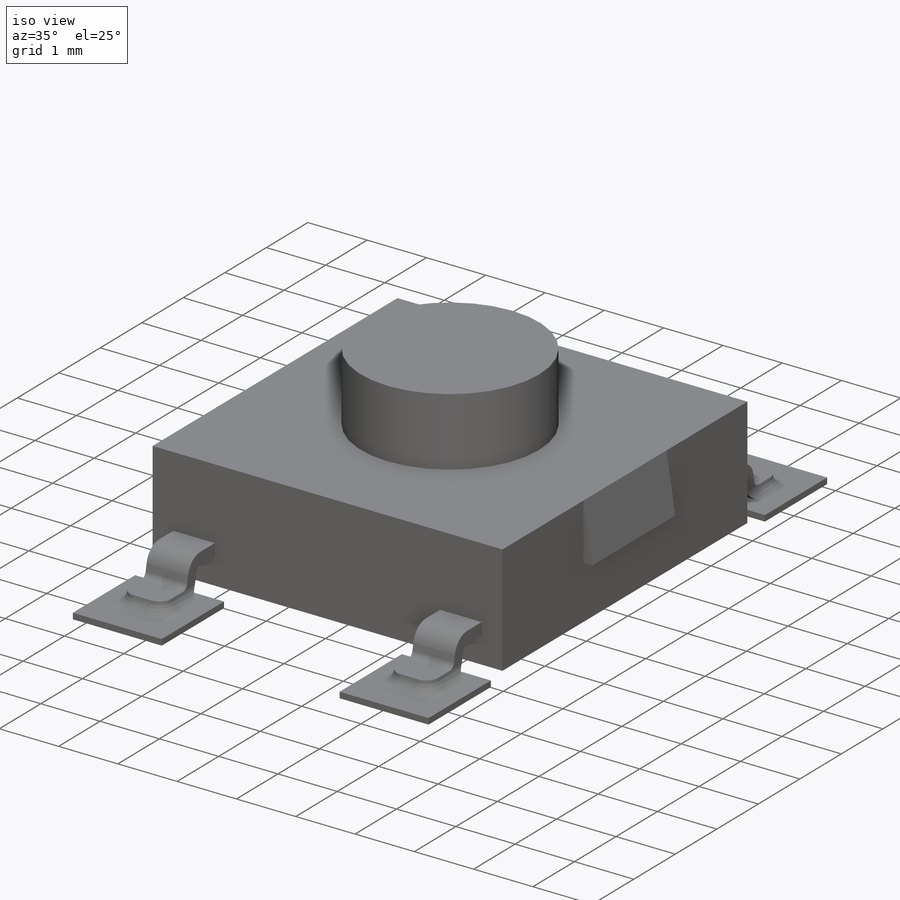
[diagram: iso view]
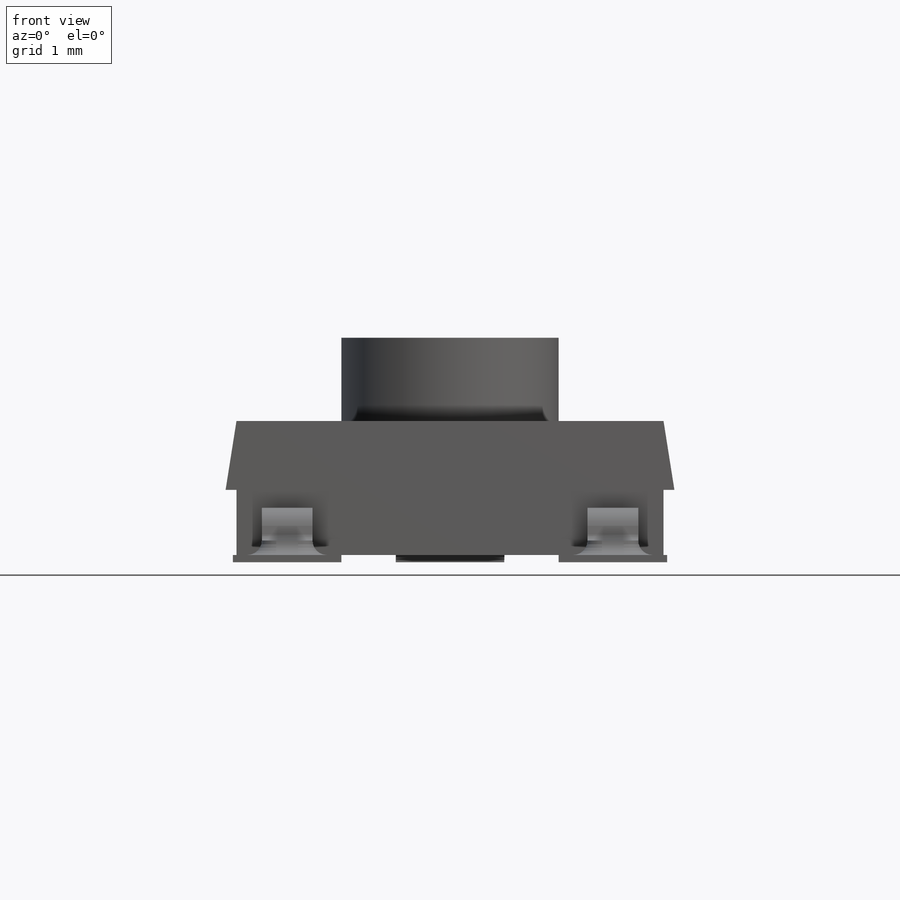
[diagram: front view]
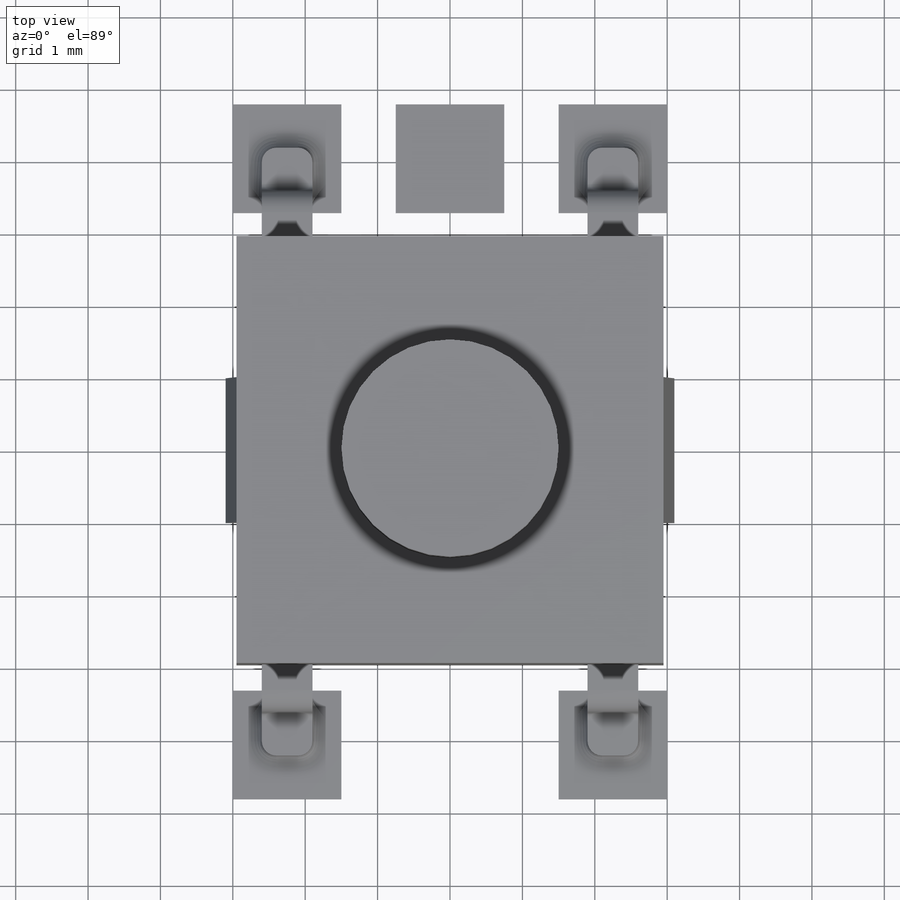
[diagram: top view]
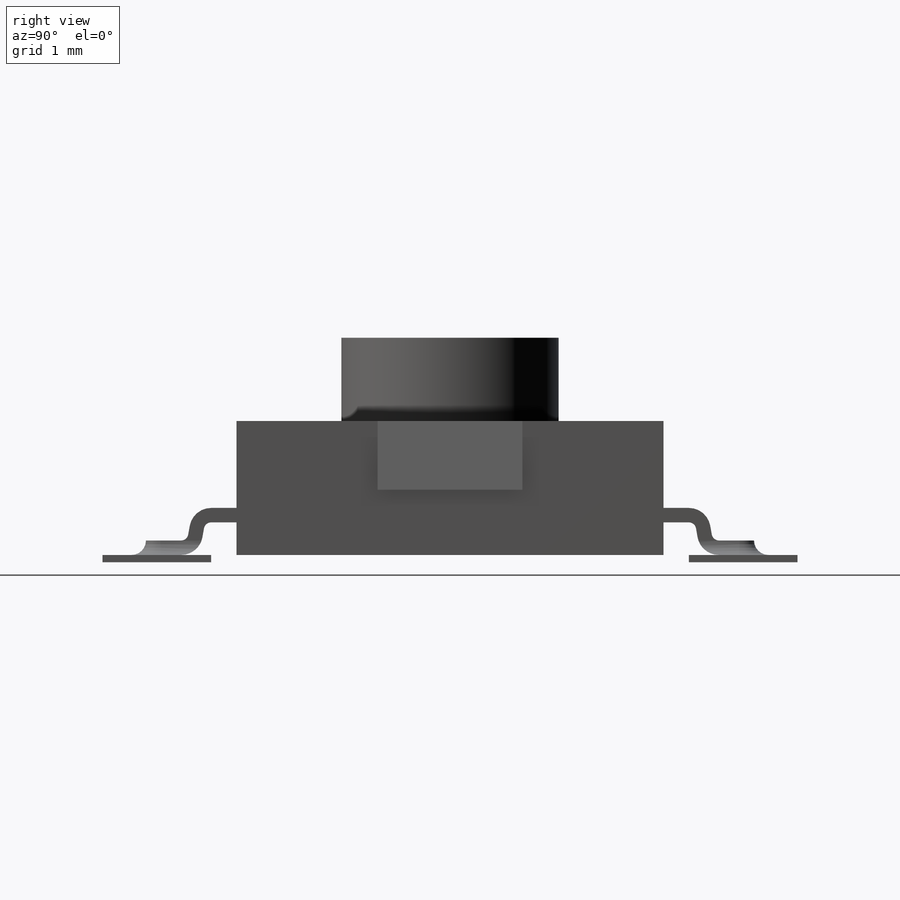
[diagram: right view]
SOLIDWORKS PART (.sldprt)
format: sldprt  version: not decoded by parser v0  size: 368,640 bytes
history: native  units: mm
features: sketch x5, extrude x4, fillet x2, material x1, plane x1, pattern_linear x1 (+13 scaffold rows collapsed)
feature tree (27):
  scaffold x13  (default folders/planes/origin — collapsed)
  material  "PA Type 6"
  sketch  "Sketch1"  dims[D1=5.9mm D2=2.95mm D3=2.95mm]
  extrude  "Boss-Extrude1"  Depth=1.85mm
  sketch  "Sketch2"  dims[D1=0.95mm D2=6.2mm D3=3.1mm]
  extrude  "Boss-Extrude2"  Depth=2mm
  plane  "Plane1"  Offset=2.25mm
  sketch  "Sketch3"  dims[c1.D6=0.2mm c1.D7=0.2mm c1.D1=0.1mm c1.D2=0.55mm c1.D3=0.425mm c2.D3=10.0deg c2.D4=0.425mm c3.D4=10.0deg c3.D5=4.2mm c3.D6=~6.487062mm c3.D8=3.3mm c3.D9=3.3mm c3.D1=0.7mm c4.D5=0.2mm c4.D6=10.0mm c4.D7=5.0mm]
  fillet  "Fillet1"  Radius=0.2mm
  pattern_linear  "LPattern1"  Count1=2 Count2=1 Spacing1=4.5mm Spacing2=10mm
  sketch  "Sketch4"  dims[D1=1.5mm D2=4.5mm D3=1.5mm D4=0.75mm D5=3.3mm D6=3.3mm]
  extrude  "Boss-Extrude3"  Depth=0.1mm
  fillet  "Fillet2"  Radius=0.2mm
  sketch  "Sketch5"  dims[D1=3.0mm]
  extrude  "Boss-Extrude4"  Depth=1.15mm
decode coverage: 12 of 12 modeling features carry decoded parameters
note: ~ marks probable driven/reference dimensions
note: suppression state not decoded; provenance and decode notes live in map.json
